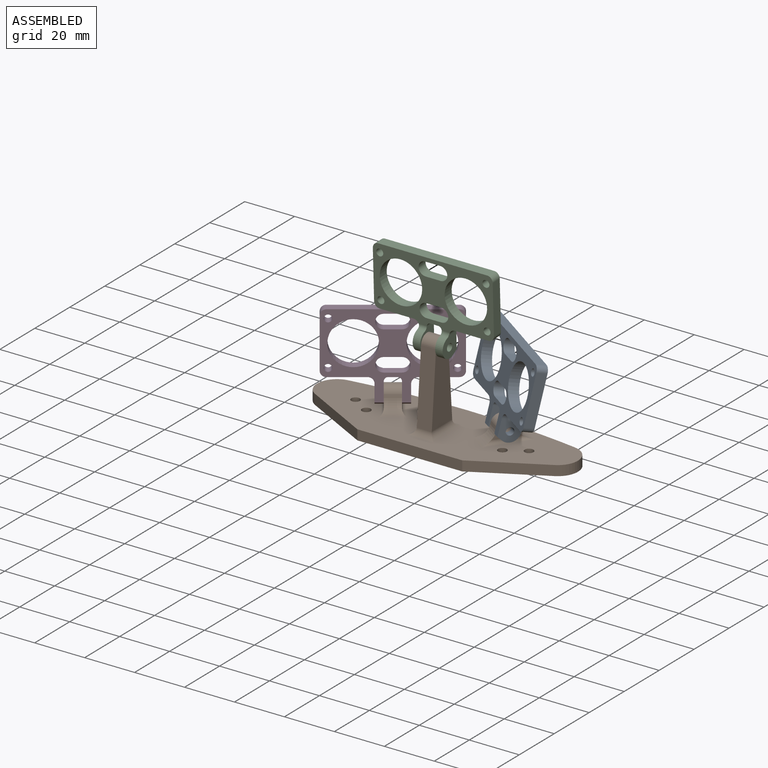
[diagram: assembled view]
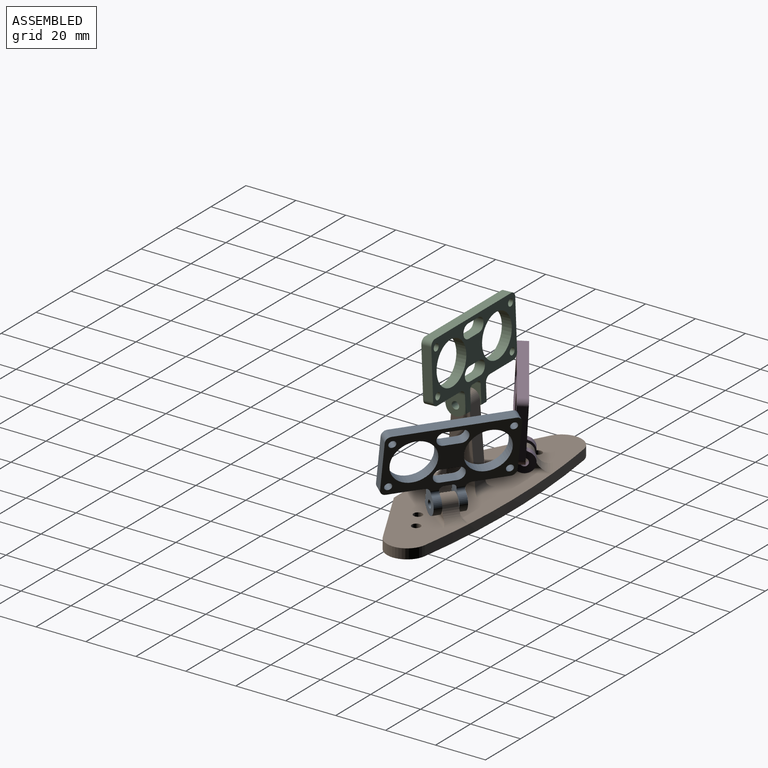
[diagram: assembled view, second angle]
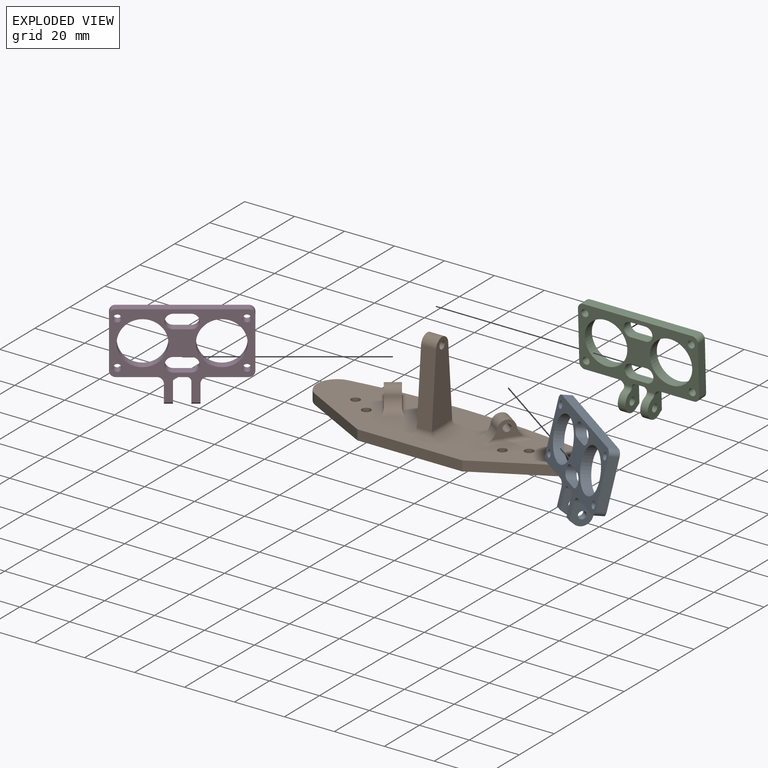
[diagram: exploded view]
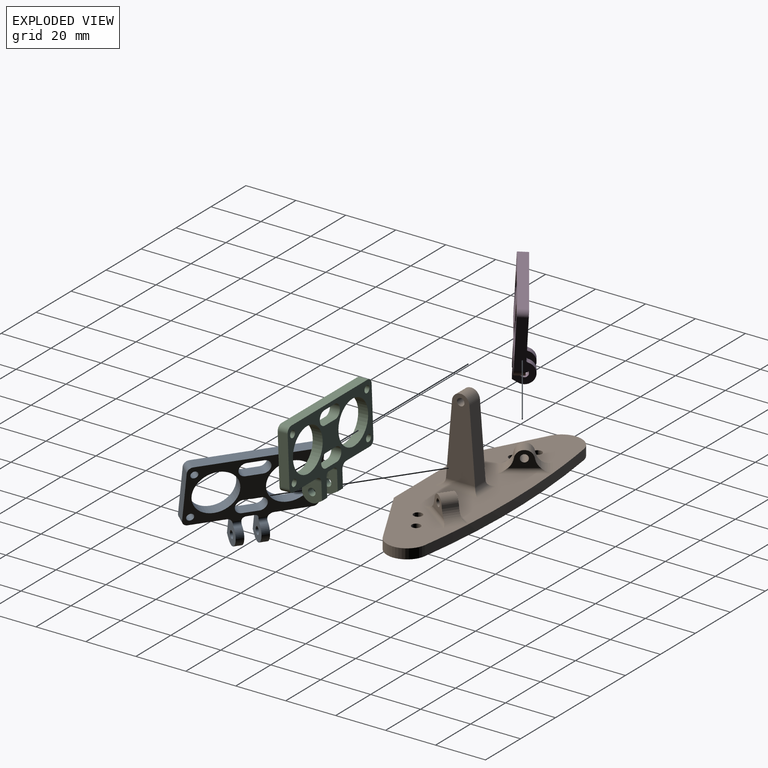
[diagram: exploded view, second angle]
ASSEMBLY  parts=4 mates=3
PART A: 46 faces, bbox 48x8x34.7 mm
  f0: plane 48x24mm, normal (0,-1,0), area 555.8mm2, adj f3,f7,f8,f9,f10,f11,f12,f13
  f1: plane 48x24mm, normal (0,1,0), area 555.8mm2, adj f4,f7,f8,f9,f10,f11,f12,f13
  f2: plane 3x2mm, normal (0,0.5,0.87), area 6.9mm2, adj f4,f5,f20,f23
  f3: plane 6.84x1.27mm, normal (0,-1,0), area 5.4mm2, adj f0,f24,f42,f44
  f4: plane 9x6.84mm, normal (0,1,0), area 28.7mm2, adj f1,f2,f20,f23,f42,f44
  f5: cylinder r=4mm len=7.82mm, axis (-1,0,0), area 40.4mm2, adj f2,f20,f23,f24
  f6: cylinder r=1.5mm len=3mm, axis (-1,0,0), area 28.3mm2, adj f20,f23
  f7: plane 13.49x4mm, normal (0,0,1), area 53.9mm2, adj f0,f1,f39,f43
  f8: plane 43.65x4mm, normal (0,0,-1), area 174.6mm2, adj f0,f1,f38,f41
  f9: plane 19.65x4mm, normal (1,0,0), area 78.6mm2, adj f0,f1,f38,f39
  f10: plane 13.49x4mm, normal (0,0,1), area 53.9mm2, adj f0,f1,f40,f42
  f11: cylinder r=8.5mm len=17mm, axis (0,1,0), area 213.6mm2, adj f0,f1
  f12: cylinder r=8.5mm len=17mm, axis (0,1,0), area 213.6mm2, adj f0,f1
  f13: plane 19.65x4mm, normal (-1,0,0), area 78.6mm2, adj f0,f1,f40,f41
  f14: plane 3x2mm, normal (0,0.5,0.87), area 6.9mm2, adj f15,f18,f19,f22
  f15: cylinder r=4mm len=7.82mm, axis (-1,0,0), area 40.4mm2, adj f14,f19,f22,f25
  f16: plane 6.84x1.27mm, normal (0,-1,0), area 5.4mm2, adj f0,f25,f43,f45
  f17: cylinder r=1.5mm len=3mm, axis (-1,0,0), area 28.3mm2, adj f19,f22
  f18: plane 9x6.84mm, normal (0,1,0), area 28.7mm2, adj f1,f14,f19,f22,f43,f45
  f19: plane 8.35x8mm, normal (1,0,0), area 49.1mm2, adj f14,f15,f17,f18,f25,f43
  f20: plane 8.35x8mm, normal (-1,0,0), area 49.1mm2, adj f2,f4,f5,f6,f24,f42
  f21: plane 4x3mm, normal (0,0,1), area 12mm2, adj f0,f1,f44,f45
  f22: plane 9.19x8mm, normal (-1,0,0), area 52.6mm2, adj f14,f15,f17,f18,f25,f45
  f23: plane 9.19x8mm, normal (1,0,0), area 52.6mm2, adj f2,f4,f5,f6,f24,f44
  f24: cylinder r=1.67mm len=3.28mm, axis (-1,0,0), area 6.5mm2, adj f3,f5,f20,f23,f42,f44
  f25: cylinder r=1.67mm len=3.28mm, axis (-1,0,0), area 6.5mm2, adj f15,f16,f19,f22,f43,f45
  f26: plane 6x4mm, normal (0,0,-1), area 24mm2, adj f0,f1,f27,f29
  f27: cylinder r=2.75mm len=5.5mm, axis (0,1,0), area 34.6mm2, adj f0,f1,f26,f28
  f28: plane 6x4mm, normal (0,0,1), area 24mm2, adj f0,f1,f27,f29
  f29: cylinder r=2.75mm len=5.5mm, axis (0,1,0), area 34.6mm2, adj f0,f1,f26,f28
  f30: plane 6x4mm, normal (0,0,-1), area 24mm2, adj f0,f1,f31,f33
  f31: cylinder r=2.75mm len=5.5mm, axis (0,1,0), area 34.6mm2, adj f0,f1,f30,f32
  f32: plane 6x4mm, normal (0,0,1), area 24mm2, adj f0,f1,f31,f33
  f33: cylinder r=2.75mm len=5.5mm, axis (0,1,0), area 34.6mm2, adj f0,f1,f30,f32
  f34: cylinder r=1.4mm len=4mm, axis (0,1,0), area 35.2mm2, adj f0,f1
  f35: cylinder r=1.4mm len=4mm, axis (0,1,0), area 35.2mm2, adj f0,f1
  f36: cylinder r=1.4mm len=4mm, axis (0,1,0), area 35.2mm2, adj f0,f1
  f37: cylinder r=1.4mm len=4mm, axis (0,1,0), area 35.2mm2, adj f0,f1
  f38: cylinder r=2.17mm len=4mm, axis (0,-1,0), area 13.7mm2, adj f0,f1,f8,f9
  f39: cylinder r=2.17mm len=4mm, axis (0,1,0), area 13.7mm2, adj f0,f1,f7,f9
  f40: cylinder r=2.17mm len=4mm, axis (0,-1,0), area 13.7mm2, adj f0,f1,f10,f13
  f41: cylinder r=2.17mm len=4mm, axis (0,1,0), area 13.7mm2, adj f0,f1,f8,f13
  f42: cylinder r=2.34mm len=4.39mm, axis (0,-1,0), area 14.8mm2, adj f3,f4,f10,f20,f24
  f43: cylinder r=2.34mm len=4.39mm, axis (0,1,0), area 14.8mm2, adj f7,f16,f18,f19,f25
  f44: cylinder r=1.5mm len=4.02mm, axis (0,-1,0), area 9.4mm2, adj f3,f4,f21,f23,f24
  f45: cylinder r=1.5mm len=4.02mm, axis (0,1,0), area 9.4mm2, adj f16,f18,f21,f22,f25
PART B: 38 faces, bbox 104.5x32.8x38.5 mm
  f0: plane 104.46x32.82mm, normal (0,0,1), area 2164.2mm2, adj f1,f2,f3,f4,f5,f6,f7,f8
  f1: plane 27.01x14.48mm, normal (-0.47,-0.88,0), area 122.6mm2, adj f0,f2,f9,f11
  f2: plane 42x4mm, normal (0,-1,0), area 168mm2, adj f0,f1,f3,f11
  f3: plane 27.01x14.48mm, normal (0.47,-0.88,0), area 122.6mm2, adj f0,f2,f4,f11
  f4: cylinder r=8mm len=14.96mm, axis (0,0,-1), area 80mm2, adj f0,f3,f5,f11
  f5: cylinder r=307.8mm len=90.82mm, axis (0,0,-1), area 364.6mm2, adj f0,f4,f9,f11,f21,f22,f35,f36
  f6: cylinder r=1.75mm len=4mm, axis (0,0,-1), area 44mm2, adj f0,f11
  f7: cylinder r=1.75mm len=4mm, axis (0,0,-1), area 44mm2, adj f0,f11
  f8: cylinder r=1.75mm len=4mm, axis (0,0,-1), area 44mm2, adj f0,f11
  f9: cylinder r=8mm len=14.96mm, axis (0,0,-1), area 80mm2, adj f0,f1,f5,f11
  f10: cylinder r=1.75mm len=4mm, axis (0,0,-1), area 44mm2, adj f0,f11
  f11: plane 104.46x32.82mm, normal (0,0,-1), area 2685mm2, adj f1,f2,f3,f4,f5,f6,f7,f8
  f12: plane 8.87x6.5mm, normal (0.82,0.57,0), area 37.9mm2, adj f16,f17,f22,f23,f36
  f13: plane 8.87x6.5mm, normal (-0.82,-0.57,0), area 37.9mm2, adj f16,f17,f22,f23,f37
  f14: plane 8.87x6.5mm, normal (-0.82,0.57,0), area 37.9mm2, adj f18,f19,f20,f21,f35
  f15: plane 8.87x6.5mm, normal (0.82,-0.57,0), area 37.9mm2, adj f18,f19,f20,f21,f34
  f16: cylinder r=3.5mm len=9.1mm, axis (-0.82,-0.57,0), area 59.3mm2, adj f12,f13,f22,f23
  f17: cylinder r=1.5mm len=6.64mm, axis (-0.82,-0.57,0), area 56.5mm2, adj f12,f13
  f18: cylinder r=3.5mm len=9.1mm, axis (0.82,-0.57,0), area 59.3mm2, adj f14,f15,f20,f21
  f19: cylinder r=1.5mm len=6.64mm, axis (0.82,-0.57,0), area 56.5mm2, adj f14,f15
  f20: cylinder r=6mm len=10.77mm, axis (0.82,-0.57,0), area 55.8mm2, adj f0,f14,f15,f18,f34,f35
  f21: cylinder r=6mm len=10.63mm, axis (0.82,-0.57,0), area 55.7mm2, adj f0,f5,f14,f15,f18,f34,f35
  f22: cylinder r=6mm len=10.63mm, axis (-0.82,-0.57,0), area 55.7mm2, adj f0,f5,f12,f13,f16,f36,f37
  f23: cylinder r=6mm len=10.77mm, axis (-0.82,-0.57,0), area 55.8mm2, adj f0,f12,f13,f16,f36,f37
  f24: plane 28.95x6.02mm, normal (0,1,0.08), area 174.3mm2, adj f25,f28,f29,f30,f31,f32
  f25: cylinder r=3.5mm len=6.97mm, axis (-1,0,0), area 62.5mm2, adj f24,f26,f28,f29
  f26: plane 28.98x6.02mm, normal (0,-1,0.08), area 174.5mm2, adj f25,f28,f29,f31,f32,f33
  f27: cylinder r=1.5mm len=6mm, axis (-1,0,0), area 56.5mm2, adj f28,f29
  f28: plane 31.98x11.66mm, normal (1,0,0), area 278.2mm2, adj f24,f25,f26,f27,f31
  f29: plane 31.98x11.66mm, normal (-1,0,0), area 278.2mm2, adj f24,f25,f26,f27,f32
  f30: cylinder r=2.5mm len=11mm, axis (1,0,0), area 29.5mm2, adj f0,f24,f31,f32
  f31: cylinder r=2.5mm len=16.68mm, axis (0,-1,0), area 53mm2, adj f0,f24,f26,f28,f30,f33
  f32: cylinder r=2.5mm len=16.68mm, axis (0,1,0), area 53mm2, adj f0,f24,f26,f29,f30,f33
  f33: cylinder r=2.5mm len=11mm, axis (-1,0,0), area 29.4mm2, adj f0,f26,f31,f32
  f34: cylinder r=1.5mm len=16.23mm, axis (0.57,0.82,0), area 34mm2, adj f0,f15,f20,f21
  f35: cylinder r=1.5mm len=15.95mm, axis (-0.57,-0.82,0), area 34mm2, adj f0,f5,f14,f20,f21
  f36: cylinder r=1.5mm len=15.95mm, axis (-0.57,0.82,0), area 34mm2, adj f0,f5,f12,f22,f23
  f37: cylinder r=1.5mm len=16.23mm, axis (0.57,-0.82,0), area 34mm2, adj f0,f13,f22,f23
PART C: same geometry as A
PART D: same geometry as A
PLACE A rot(axis=(0.95,-0.3,-0.03),167.4deg) t=(24.01,10.55,39.79)mm
PLACE B at identity fixed
PLACE C rot(axis=(0,-1,-0.02),180deg) t=(0,3.01,66.3)mm
PLACE D rot(axis=(0.95,0.3,0.01),177.2deg) t=(-20.82,6,39.85)mm
MATE revolute B.f19 <-> A.f5  axis (0.82,-0.57,0) through (24.67,6.27,9)mm
MATE revolute B.f27 <-> C.f5  axis (1,0,0) through (3,0.14,35.48)mm
MATE revolute B.f17 <-> D.f5  axis (-0.82,-0.57,0) through (-24.67,6.27,9)mm
